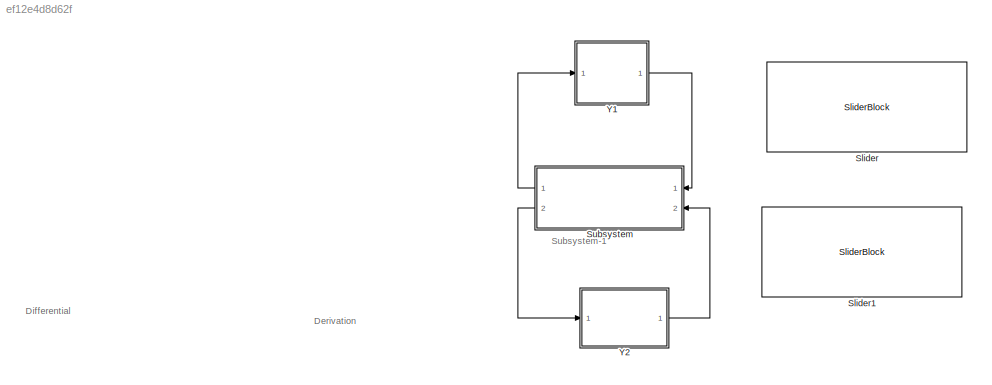
MODEL slx_ef12e4d8d62f
KIND model
CONFIG AbsTol = auto
CONFIG EnableMultiTasking = off
CONFIG FixedStep = auto
CONFIG MaxStep = auto
CONFIG MinStep = auto
CONFIG RelTol = 1e-3
CONFIG SampleTimeConstraint = Unconstrained
CONFIG SolverName = VariableStepAuto
CONFIG StartTime = 0.0
CONFIG StopTime = 10.0
BLOCK [SliderBlock] Slider
  ScaleMax = 2000
BLOCK [SliderBlock] Slider1
  ScaleMax = 50
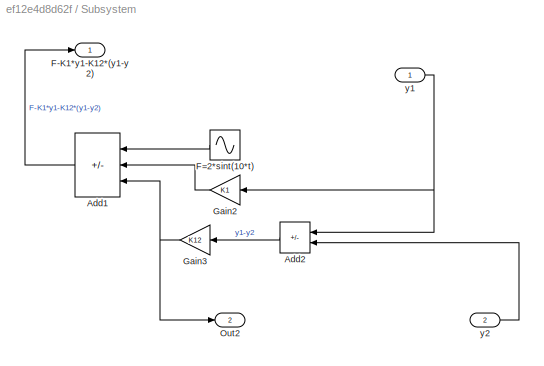
BLOCK [SubSystem] Subsystem
  NameLocation = top
  Ports = [2, 2]
  RequestExecContextInheritance = off
BLOCK [Sum] Subsystem/Add1
  IconShape = rectangular
  Inputs = +--
  NameLocation = top
  Ports = [3, 1]
BLOCK [Sum] Subsystem/Add2
  IconShape = rectangular
  Inputs = +-
  NameLocation = top
  Ports = [2, 1]
BLOCK [Outport] Subsystem/F-K1*y1-K12*(y1-y2)
BLOCK [Sin] Subsystem/F=2*sint(10*t)
  Amplitude = 2
  Frequency = 10
  NameLocation = top
  Ports = [0, 1]
  SampleTime = 0
BLOCK [Gain] Subsystem/Gain2
  Gain = K1
  NameLocation = top
BLOCK [Gain] Subsystem/Gain3
  Gain = K12
  NameLocation = top
BLOCK [Outport] Subsystem/Out2
  Port = 2
BLOCK [Inport] Subsystem/y1
BLOCK [Inport] Subsystem/y2
  Port = 2
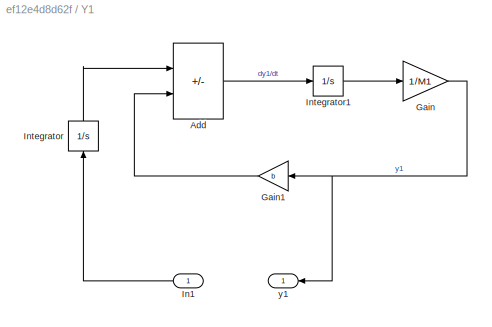
BLOCK [SubSystem] Y1
  Ports = [1, 1]
  RequestExecContextInheritance = off
BLOCK [Sum] Y1/Add
  IconShape = rectangular
  Inputs = +-
  Ports = [2, 1]
BLOCK [Gain] Y1/Gain
  Gain = 1/M1
BLOCK [Gain] Y1/Gain1
  Gain = b
  NameLocation = top
BLOCK [Inport] Y1/In1
BLOCK [Integrator] Y1/Integrator
  NameLocation = right
  Ports = [1, 1]
BLOCK [Integrator] Y1/Integrator1
  Ports = [1, 1]
BLOCK [Outport] Y1/y1
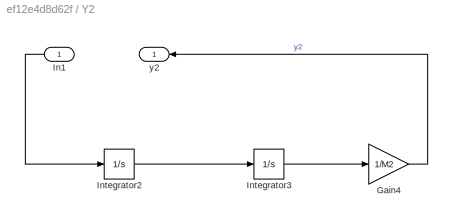
BLOCK [SubSystem] Y2
  Ports = [1, 1]
  RequestExecContextInheritance = off
BLOCK [Gain] Y2/Gain4
  Gain = 1/M2
BLOCK [Inport] Y2/In1
BLOCK [Integrator] Y2/Integrator2
  Ports = [1, 1]
BLOCK [Integrator] Y2/Integrator3
  Ports = [1, 1]
BLOCK [Outport] Y2/y2
ANNOTATION (root): Derivation
ANNOTATION (root): Differential
ANNOTATION (root): Subsystem-1
LINE Subsystem/Add1:1 -> Subsystem/F-K1*y1-K12*(y1-y2):1
LINE Subsystem/Add2:1 -> Subsystem/Gain3:1
LINE Subsystem/F=2*sint(10*t):1 -> Subsystem/Add1:1
LINE Subsystem/Gain2:1 -> Subsystem/Add1:2
NET Subsystem/Gain3:1 -> Subsystem/Add1:3, Subsystem/Out2:1
NET Subsystem/y1:1 -> Subsystem/Add2:1, Subsystem/Gain2:1
LINE Subsystem/y2:1 -> Subsystem/Add2:2
LINE Subsystem:1 -> Y1:1
LINE Subsystem:2 -> Y2:1
LINE Y1/Add:1 -> Y1/Integrator1:1
LINE Y1/Gain1:1 -> Y1/Add:2
NET Y1/Gain:1 -> Y1/Gain1:1, Y1/y1:1
LINE Y1/In1:1 -> Y1/Integrator:1
LINE Y1/Integrator1:1 -> Y1/Gain:1
LINE Y1/Integrator:1 -> Y1/Add:1
LINE Y1:1 -> Subsystem:1
LINE Y2/Gain4:1 -> Y2/y2:1
LINE Y2/In1:1 -> Y2/Integrator2:1
LINE Y2/Integrator2:1 -> Y2/Integrator3:1
LINE Y2/Integrator3:1 -> Y2/Gain4:1
LINE Y2:1 -> Subsystem:2
note: NET lines group one-source signal fan-out (src -> all destinations, sorted); 1:1 wires keep LINE
